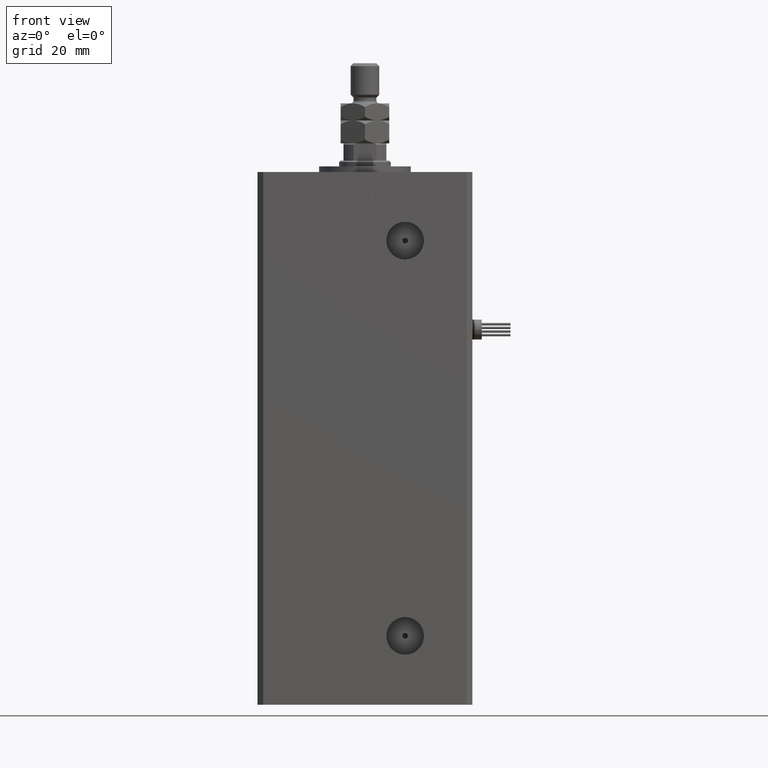
[diagram: clean part render]
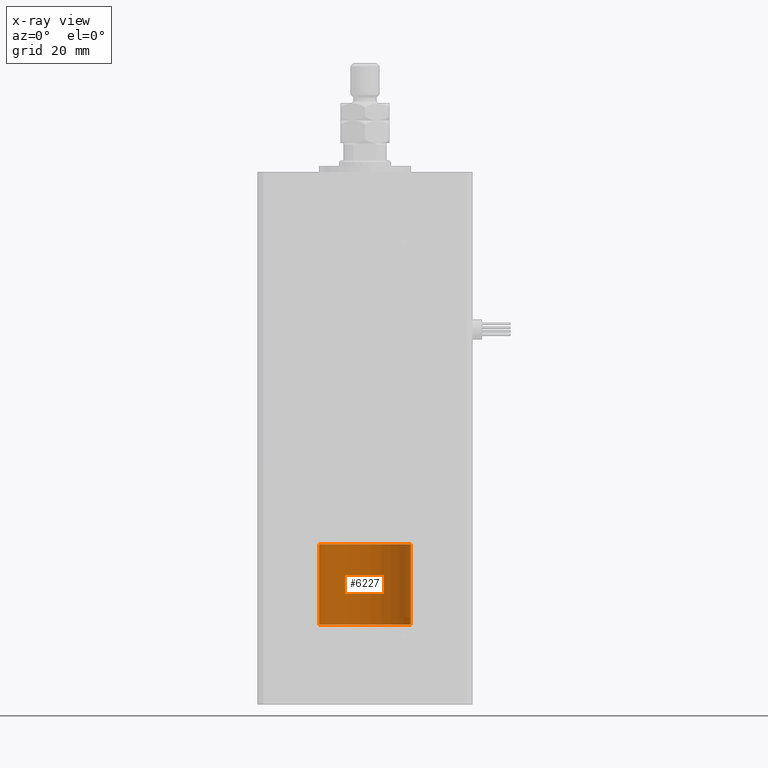
[diagram: x-ray — body ghosted, one internal face saturated and labeled with its STEP entity id]
A machine part, front view, then the same camera in x-ray: the body is ghosted and one INTERNAL B-rep face — a face not visible from any outside direction — is saturated and labeled: STEP entity #6227.
In plain terms, the highlighted cylindrical surface (partial cylindrical patch) has radius 16 mm, axis along (-0, -0, -1).
Its self-contained STEP definition (entity closure, byte-faithful):
#111 = DIRECTION ( 'NONE',  ( 0.000000000000000000, 0.000000000000000000, 1.000000000000000000 ) ) ;
#323 = DIRECTION ( 'NONE',  ( 1.000000000000000000, 0.000000000000000000, 0.000000000000000000 ) ) ;
#879 = DIRECTION ( 'NONE',  ( 0.000000000000000000, 0.000000000000000000, 1.000000000000000000 ) ) ;
#3374 = VECTOR ( 'NONE', #32930, 1000.000000000000000 ) ;
#3408 = AXIS2_PLACEMENT_3D ( 'NONE', #13513, #879, #323 ) ;
#3705 = DIRECTION ( 'NONE',  ( -1.000000000000000000, 0.000000000000000000, 0.000000000000000000 ) ) ;
#4755 = CIRCLE ( 'NONE', #20315, 15.99999999999999645 ) ;
#6227 = ADVANCED_FACE ( 'NONE', ( #8008 ), #51337, .T. ) ;
#6537 = ORIENTED_EDGE ( 'NONE', *, *, #49999, .F. ) ;
#7515 = EDGE_CURVE ( 'NONE', #48070, #26482, #4755, .T. ) ;
#8008 = FACE_OUTER_BOUND ( 'NONE', #56381, .T. ) ;
#8276 = ORIENTED_EDGE ( 'NONE', *, *, #9200, .F. ) ;
#9200 = EDGE_CURVE ( 'NONE', #47496, #26482, #35538, .T. ) ;
#11679 = VERTEX_POINT ( 'NONE', #42699 ) ;
#13414 = CARTESIAN_POINT ( 'NONE',  ( 15.99999999999999645, 1.959434878635764737E-15, 0.000000000000000000 ) ) ;
#13513 = CARTESIAN_POINT ( 'NONE',  ( 0.000000000000000000, 0.000000000000000000, 28.00000000000000000 ) ) ;
#14901 = VECTOR ( 'NONE', #53622, 1000.000000000000000 ) ;
#15693 = ORIENTED_EDGE ( 'NONE', *, *, #7515, .T. ) ;
#19730 = LINE ( 'NONE', #49594, #3374 ) ;
#20315 = AXIS2_PLACEMENT_3D ( 'NONE', #54940, #111, #48024 ) ;
#25511 = CARTESIAN_POINT ( 'NONE',  ( 0.000000000000000000, 0.000000000000000000, 28.00000000000000000 ) ) ;
#26482 = VERTEX_POINT ( 'NONE', #34563 ) ;
#27233 = CARTESIAN_POINT ( 'NONE',  ( -15.99999999999999645, 0.000000000000000000, 28.00000000000000000 ) ) ;
#30359 = AXIS2_PLACEMENT_3D ( 'NONE', #25511, #42994, #3705 ) ;
#32930 = DIRECTION ( 'NONE',  ( -0.000000000000000000, -0.000000000000000000, -1.000000000000000000 ) ) ;
#34563 = CARTESIAN_POINT ( 'NONE',  ( -15.99999999999999645, 0.000000000000000000, 0.000000000000000000 ) ) ;
#35538 = LINE ( 'NONE', #27233, #14901 ) ;
#37007 = ORIENTED_EDGE ( 'NONE', *, *, #49099, .T. ) ;
#42699 = CARTESIAN_POINT ( 'NONE',  ( 15.99999999999999645, 1.959434878635764737E-15, 28.00000000000000000 ) ) ;
#42994 = DIRECTION ( 'NONE',  ( -0.000000000000000000, -0.000000000000000000, -1.000000000000000000 ) ) ;
#43682 = CIRCLE ( 'NONE', #3408, 15.99999999999999645 ) ;
#47496 = VERTEX_POINT ( 'NONE', #51443 ) ;
#48024 = DIRECTION ( 'NONE',  ( 1.000000000000000000, 0.000000000000000000, 0.000000000000000000 ) ) ;
#48070 = VERTEX_POINT ( 'NONE', #13414 ) ;
#49099 = EDGE_CURVE ( 'NONE', #11679, #48070, #19730, .T. ) ;
#49594 = CARTESIAN_POINT ( 'NONE',  ( 15.99999999999999645, 1.959434878635764737E-15, 28.00000000000000000 ) ) ;
#49999 = EDGE_CURVE ( 'NONE', #11679, #47496, #43682, .T. ) ;
#51337 = CYLINDRICAL_SURFACE ( 'NONE', #30359, 15.99999999999999645 ) ;
#51443 = CARTESIAN_POINT ( 'NONE',  ( -15.99999999999999645, 0.000000000000000000, 28.00000000000000000 ) ) ;
#53622 = DIRECTION ( 'NONE',  ( -0.000000000000000000, -0.000000000000000000, -1.000000000000000000 ) ) ;
#54940 = CARTESIAN_POINT ( 'NONE',  ( 0.000000000000000000, 0.000000000000000000, 0.000000000000000000 ) ) ;
#56381 = EDGE_LOOP ( 'NONE', ( #6537, #37007, #15693, #8276 ) ) ;